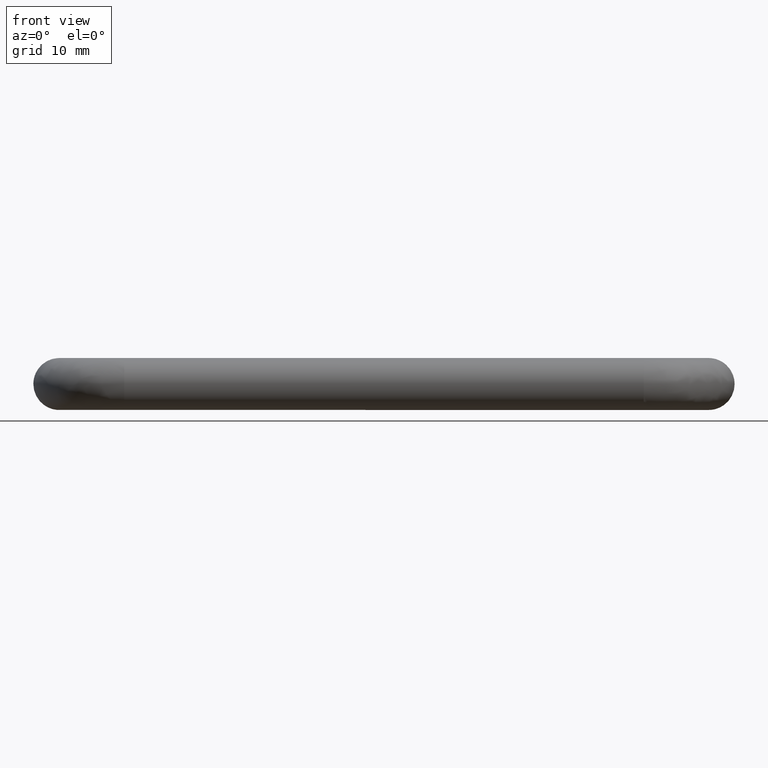
[diagram: clean part render]
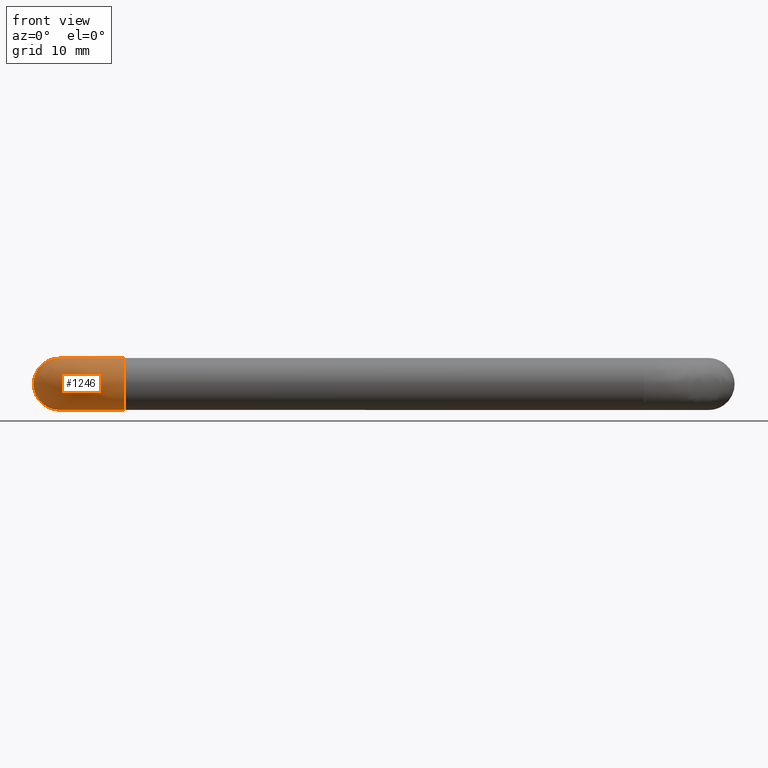
[diagram: same view with one face highlighted and labeled with its STEP entity id]
A machine part, front view. The second image highlights one B-rep face of the part: STEP entity #1246.
In plain terms, the highlighted face is a freeform B-spline surface patch.
Its self-contained STEP definition (entity closure, byte-faithful):
#663=CARTESIAN_POINT('',(10.0,-28.486157657653290,3.713668727363614));
#664=VERTEX_POINT('',#663);
#670=CARTESIAN_POINT('',(10.0,-31.0,0.0));
#671=VERTEX_POINT('',#670);
#672=CARTESIAN_POINT('',(10.0,-28.486157657653294,3.713668727363613));
#673=CARTESIAN_POINT('',(10.0,-31.000000000000004,2.707664605417969));
#674=CARTESIAN_POINT('',(10.0,-31.0,0.0));
#682=(BOUNDED_CURVE()B_SPLINE_CURVE(2,(#672,#673,#674),.UNSPECIFIED.,.F.,.U.)B_SPLINE_CURVE_WITH_KNOTS((3,3),(0.813083199462624,1.0),.UNSPECIFIED.)CURVE()GEOMETRIC_REPRESENTATION_ITEM()RATIONAL_B_SPLINE_CURVE((0.889484970091733,0.781013346561183,1.0))REPRESENTATION_ITEM(''));
#683=EDGE_CURVE('',#664,#671,#682,.T.);
#685=CARTESIAN_POINT('',(9.999999999236174,-27.278933009532668,-3.990262695135878));
#686=VERTEX_POINT('',#685);
#687=CARTESIAN_POINT('',(10.0,-31.0,0.0));
#688=CARTESIAN_POINT('',(9.999999999999998,-31.000000000000007,-3.730147383011171));
#689=CARTESIAN_POINT('',(9.999999999236174,-27.278933009532668,-3.990262695135878));
#697=(BOUNDED_CURVE()B_SPLINE_CURVE(2,(#687,#688,#689),.UNSPECIFIED.,.F.,.U.)B_SPLINE_CURVE_WITH_KNOTS((3,3),(0.0,0.237833686256628),.UNSPECIFIED.)CURVE()GEOMETRIC_REPRESENTATION_ITEM()RATIONAL_B_SPLINE_CURVE((1.0,0.721360504360110,0.972879875798001))REPRESENTATION_ITEM(''));
#698=EDGE_CURVE('',#671,#686,#697,.T.);
#832=CARTESIAN_POINT('',(9.999999999468937,-26.949735839678869,3.999684176805364));
#833=VERTEX_POINT('',#832);
#847=CARTESIAN_POINT('',(9.999999999468937,-26.949735839678869,3.999684176805364));
#848=CARTESIAN_POINT('',(10.0,-26.974866927244626,4.0));
#849=CARTESIAN_POINT('',(10.0,-27.0,4.0));
#850=CARTESIAN_POINT('',(10.000000000000002,-27.770661904316537,4.000000000000000));
#851=CARTESIAN_POINT('',(10.0,-28.486157657653298,3.713668727363614));
#859=(BOUNDED_CURVE()B_SPLINE_CURVE(2,(#847,#848,#849,#850,#851),.UNSPECIFIED.,.F.,.U.)B_SPLINE_CURVE_WITH_KNOTS((3,2,3),(0.747784295852456,0.750000000000000,0.813083199462623),.UNSPECIFIED.)CURVE()GEOMETRIC_REPRESENTATION_ITEM()RATIONAL_B_SPLINE_CURVE((0.994854295484574,0.997404141121150,1.0,0.926093434625365,0.889484970091734))REPRESENTATION_ITEM(''));
#860=EDGE_CURVE('',#833,#664,#859,.T.);
#987=CARTESIAN_POINT('',(-0.278933012064626,-17.000000001556419,-3.990262694958886));
#988=VERTEX_POINT('',#987);
#1004=CARTESIAN_POINT('',(-3.999999999999998,-17.0,0.0));
#1005=VERTEX_POINT('',#1004);
#1006=CARTESIAN_POINT('',(-3.999999999999998,-17.0,0.0));
#1007=CARTESIAN_POINT('',(-4.000000000000000,-17.0,-3.730147378265797));
#1008=CARTESIAN_POINT('',(-0.278933012064626,-17.000000001556419,-3.990262694958886));
#1016=(BOUNDED_CURVE()B_SPLINE_CURVE(2,(#1006,#1007,#1008),.UNSPECIFIED.,.F.,.U.)B_SPLINE_CURVE_WITH_KNOTS((3,3),(0.0,0.237833686038370),.UNSPECIFIED.)CURVE()GEOMETRIC_REPRESENTATION_ITEM()RATIONAL_B_SPLINE_CURVE((1.0,0.721360504615815,0.972879875336366))REPRESENTATION_ITEM(''));
#1017=EDGE_CURVE('',#1005,#988,#1016,.T.);
#1019=CARTESIAN_POINT('',(0.050264159732992,-17.000000000230710,3.999684176812755));
#1020=VERTEX_POINT('',#1019);
#1021=CARTESIAN_POINT('',(0.050264159732992,-17.000000000230706,3.999684176812755));
#1022=CARTESIAN_POINT('',(0.025133072167163,-17.0,4.0));
#1023=CARTESIAN_POINT('',(2.081831E-015,-17.0,4.0));
#1024=CARTESIAN_POINT('',(-3.999999999999998,-17.000000000000004,4.000000000000000));
#1025=CARTESIAN_POINT('',(-3.999999999999998,-17.0,0.0));
#1033=(BOUNDED_CURVE()B_SPLINE_CURVE(2,(#1021,#1022,#1023,#1024,#1025),.UNSPECIFIED.,.F.,.U.)B_SPLINE_CURVE_WITH_KNOTS((3,2,3),(0.747784295904177,0.750000000000000,1.0),.UNSPECIFIED.)CURVE()GEOMETRIC_REPRESENTATION_ITEM()RATIONAL_B_SPLINE_CURVE((0.994854295603617,0.997404141181745,1.0,0.707106781186548,1.0))REPRESENTATION_ITEM(''));
#1034=EDGE_CURVE('',#1020,#1005,#1033,.T.);
#1184=CARTESIAN_POINT('',(-0.196833793885334,-16.293048057154898,-3.994290664094727));
#1185=CARTESIAN_POINT('',(-1.009729628017505,-28.017980418227260,-3.994290664094726));
#1186=CARTESIAN_POINT('',(10.714590479911156,-27.196301335074146,-3.994290664094726));
#1187=CARTESIAN_POINT('',(-0.225496454292930,-16.291060859572610,-3.992282236480419));
#1188=CARTESIAN_POINT('',(-1.040677287642648,-28.048951270306326,-3.992282236480417));
#1189=CARTESIAN_POINT('',(10.716599148942171,-27.224962498773415,-3.992282236480419));
#1190=CARTESIAN_POINT('',(-4.013512147630050,-16.028435704738925,-3.726851351358788));
#1191=CARTESIAN_POINT('',(-5.130675168684697,-32.142014232473429,-3.726851351358789));
#1192=CARTESIAN_POINT('',(10.982061939346378,-31.012780389304915,-3.726851351358789));
#1193=CARTESIAN_POINT('',(-3.966158686725386,-16.031718745520379,0.050264159533410));
#1194=CARTESIAN_POINT('',(-5.079546670167449,-32.090847417800461,0.050264159533410));
#1195=CARTESIAN_POINT('',(10.978743425674653,-30.965429401105794,0.050264159533410));
#1196=CARTESIAN_POINT('',(-3.916014896377526,-16.035195241335110,4.049948336348672));
#1197=CARTESIAN_POINT('',(-5.025405395982419,-32.036665569658567,4.049948336348672));
#1198=CARTESIAN_POINT('',(10.975229366709534,-30.915288229169061,4.049948336348674));
#1199=CARTESIAN_POINT('',(0.102405824022624,-16.313794499975529,3.999327490717029));
#1200=CARTESIAN_POINT('',(-0.686634503221659,-27.694643163044713,3.999327490717028));
#1201=CARTESIAN_POINT('',(10.693619874084716,-26.897077342876521,3.999327490717029));
#1202=CARTESIAN_POINT('',(0.130554572663300,-16.315746067780040,3.998972895327743));
#1203=CARTESIAN_POINT('',(-0.656241724623393,-27.664227607825357,3.998972895327742));
#1204=CARTESIAN_POINT('',(10.691647219807258,-26.868930064108703,3.998972895327743));
#1212=(BOUNDED_SURFACE()B_SPLINE_SURFACE(2,2,((#1184,#1187,#1190,#1193,#1196,#1199,#1202),(#1185,#1188,#1191,#1194,#1197,#1200,#1203),(#1186,#1189,#1192,#1195,#1198,#1201,#1204)),.UNSPECIFIED.,.F.,.F.,.U.)B_SPLINE_SURFACE_WITH_KNOTS((3,3),(3,1,2,1,3),(0.0,25.512457512980429),(0.0,0.066516799076906,6.428837117127646,13.056254115097170,13.122960204118639),.UNSPECIFIED.)GEOMETRIC_REPRESENTATION_ITEM()RATIONAL_B_SPLINE_SURFACE(((0.905744133050730,0.903251984884295,0.662386295974072,0.921487970695580,0.651590392860676,0.924204536117561,0.926921101539543),(0.591078851651064,0.589452502638568,0.432266152092013,0.601353110281207,0.425220862167464,0.603125911574053,0.604898712866899),(0.895737727645560,0.893273112028300,0.655068439230114,0.911307631818076,0.644391806205615,0.913994185392417,0.916680738966759)))REPRESENTATION_ITEM('')SURFACE());
#1213=ORIENTED_EDGE('',*,*,#698,.F.);
#1214=ORIENTED_EDGE('',*,*,#683,.F.);
#1215=ORIENTED_EDGE('',*,*,#860,.F.);
#1216=CARTESIAN_POINT('',(0.050264159732992,-17.000000000230710,3.999684176812755));
#1217=CARTESIAN_POINT('',(0.050264159994833,-26.949735839404472,3.999684176815264));
#1218=CARTESIAN_POINT('',(9.999999999468939,-26.949735839678869,3.999684176805364));
#1226=(BOUNDED_CURVE()B_SPLINE_CURVE(2,(#1216,#1217,#1218),.UNSPECIFIED.,.F.,.U.)B_SPLINE_CURVE_WITH_KNOTS((3,3),(-1.747842683620797,-0.278273131056677),.UNSPECIFIED.)CURVE()GEOMETRIC_REPRESENTATION_ITEM()RATIONAL_B_SPLINE_CURVE((0.893710737946611,0.628668022917835,0.884455039416817))REPRESENTATION_ITEM(''));
#1227=EDGE_CURVE('',#1020,#833,#1226,.T.);
#1228=ORIENTED_EDGE('',*,*,#1227,.F.);
#1229=ORIENTED_EDGE('',*,*,#1034,.T.);
#1230=ORIENTED_EDGE('',*,*,#1017,.T.);
#1231=CARTESIAN_POINT('',(-0.278933012064626,-17.000000001556423,-3.990262694958886));
#1232=CARTESIAN_POINT('',(-0.278933003188927,-27.278933004774117,-3.990262695361727));
#1233=CARTESIAN_POINT('',(9.999999999236174,-27.278933009532661,-3.990262695135878));
#1241=(BOUNDED_CURVE()B_SPLINE_CURVE(2,(#1231,#1232,#1233),.UNSPECIFIED.,.F.,.U.)B_SPLINE_CURVE_WITH_KNOTS((3,3),(-1.747842683352906,-0.278273131099962),.UNSPECIFIED.)CURVE()GEOMETRIC_REPRESENTATION_ITEM()RATIONAL_B_SPLINE_CURVE((0.873607430481249,0.614526639229798,0.864559931557693))REPRESENTATION_ITEM(''));
#1242=EDGE_CURVE('',#988,#686,#1241,.T.);
#1243=ORIENTED_EDGE('',*,*,#1242,.T.);
#1244=EDGE_LOOP('',(#1213,#1214,#1215,#1228,#1229,#1230,#1243));
#1245=FACE_OUTER_BOUND('',#1244,.T.);
#1246=ADVANCED_FACE('',(#1245),#1212,.T.);